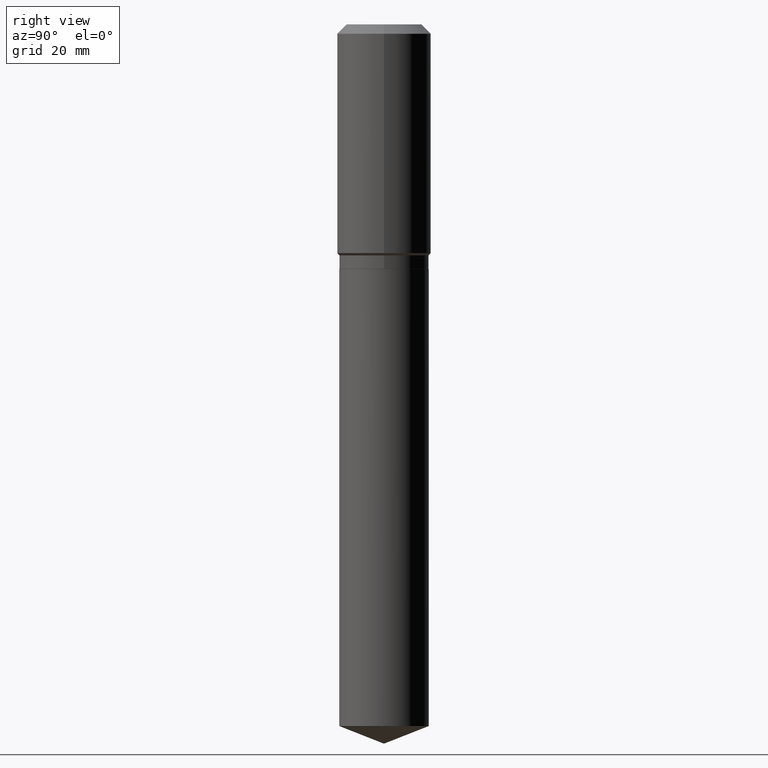
[diagram: clean part render]
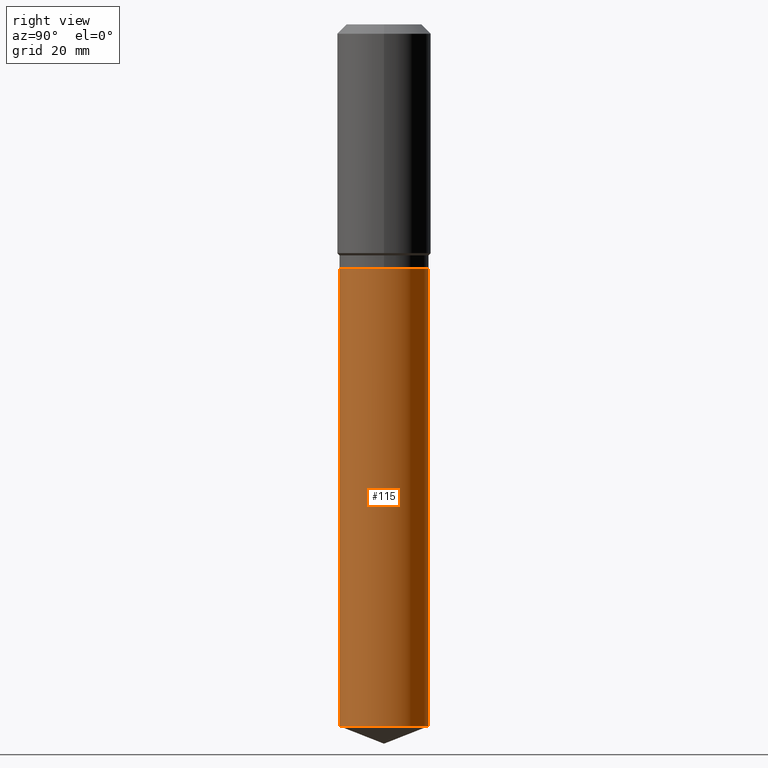
[diagram: same view with one face highlighted and labeled with its STEP entity id]
A machine part, right view. The second image highlights one B-rep face of the part: STEP entity #115.
In plain terms, the highlighted cylindrical surface (partial cylindrical patch) has radius 9.525 mm, axis along (-0, 0, 1).
Its self-contained STEP definition (entity closure, byte-faithful):
#5 = FACE_OUTER_BOUND ( 'NONE', #416, .T. ) ;
#40 = ORIENTED_EDGE ( 'NONE', *, *, #202, .F. ) ;
#46 = DIRECTION ( 'NONE',  ( -2.445291597268373116E-29, 3.491735112098055951E-15, 1.000000000000000000 ) ) ;
#47 = DIRECTION ( 'NONE',  ( -2.445291597268373116E-29, 3.491735112098055951E-15, 1.000000000000000000 ) ) ;
#63 = EDGE_CURVE ( 'NONE', #324, #274, #268, .T. ) ;
#81 = DIRECTION ( 'NONE',  ( -2.445291597268373116E-29, 3.491735112098055951E-15, 1.000000000000000000 ) ) ;
#100 = DIRECTION ( 'NONE',  ( -6.982962677686265922E-15, -1.000000000000000000, 3.642463991552350169E-15 ) ) ;
#101 = CARTESIAN_POINT ( 'NONE',  ( -2.618611004132299924E-15, -0.3750000000000072164, -2.047599999999998754 ) ) ;
#110 = CARTESIAN_POINT ( 'NONE',  ( 2.664535259100520059E-15, 0.3749999999999928391, -2.047600000000001863 ) ) ;
#112 = ORIENTED_EDGE ( 'NONE', *, *, #253, .F. ) ;
#115 = ADVANCED_FACE ( 'NONE', ( #5 ), #314, .T. ) ;
#159 = DIRECTION ( 'NONE',  ( -6.982962677686265922E-15, -1.000000000000000000, 3.642463991552350169E-15 ) ) ;
#191 = CIRCLE ( 'NONE', #250, 0.3750000000000000555 ) ;
#202 = EDGE_CURVE ( 'NONE', #477, #318, #332, .T. ) ;
#212 = EDGE_CURVE ( 'NONE', #477, #324, #409, .T. ) ;
#226 = CARTESIAN_POINT ( 'NONE',  ( 5.007341927544686818E-29, -7.149157189415226982E-15, -2.047600000000000531 ) ) ;
#232 = ORIENTED_EDGE ( 'NONE', *, *, #212, .T. ) ;
#250 = AXIS2_PLACEMENT_3D ( 'NONE', #256, #418, #100 ) ;
#253 = EDGE_CURVE ( 'NONE', #318, #274, #191, .T. ) ;
#256 = CARTESIAN_POINT ( 'NONE',  ( 5.007341927544686818E-29, -7.149157189415226982E-15, -2.047600000000000531 ) ) ;
#266 = ORIENTED_EDGE ( 'NONE', *, *, #63, .T. ) ;
#268 = LINE ( 'NONE', #459, #344 ) ;
#272 = CARTESIAN_POINT ( 'NONE',  ( -2.618611004132299924E-15, -0.3750000000000072164, -2.047599999999998754 ) ) ;
#274 = VERTEX_POINT ( 'NONE', #110 ) ;
#277 = DIRECTION ( 'NONE',  ( -2.445291597268373116E-29, 3.491735112098055951E-15, 1.000000000000000000 ) ) ;
#298 = AXIS2_PLACEMENT_3D ( 'NONE', #458, #277, #430 ) ;
#314 = CYLINDRICAL_SURFACE ( 'NONE', #334, 0.3750000000000000555 ) ;
#318 = VERTEX_POINT ( 'NONE', #101 ) ;
#324 = VERTEX_POINT ( 'NONE', #483 ) ;
#332 = LINE ( 'NONE', #272, #434 ) ;
#334 = AXIS2_PLACEMENT_3D ( 'NONE', #226, #46, #159 ) ;
#344 = VECTOR ( 'NONE', #81, 39.37007874015748143 ) ;
#409 = CIRCLE ( 'NONE', #298, 0.3750000000000000555 ) ;
#416 = EDGE_LOOP ( 'NONE', ( #232, #266, #112, #40 ) ) ;
#418 = DIRECTION ( 'NONE',  ( -2.445291597268373116E-29, 3.491735112098055951E-15, 1.000000000000000000 ) ) ;
#430 = DIRECTION ( 'NONE',  ( -6.982962677686265922E-15, -1.000000000000000000, 2.913971193241880372E-15 ) ) ;
#434 = VECTOR ( 'NONE', #47, 39.37007874015748143 ) ;
#458 = CARTESIAN_POINT ( 'NONE',  ( 1.436958969388619545E-28, -2.051790604963896407E-14, -5.876283571644398407 ) ) ;
#459 = CARTESIAN_POINT ( 'NONE',  ( 2.664535259100425395E-15, 0.3749999999999928391, -2.047600000000001863 ) ) ;
#470 = CARTESIAN_POINT ( 'NONE',  ( -2.618611004132207233E-15, -0.3750000000000206501, -5.876283571644396631 ) ) ;
#477 = VERTEX_POINT ( 'NONE', #470 ) ;
#483 = CARTESIAN_POINT ( 'NONE',  ( 2.664535259100520059E-15, 0.3749999999999796829, -5.876283571644399295 ) ) ;